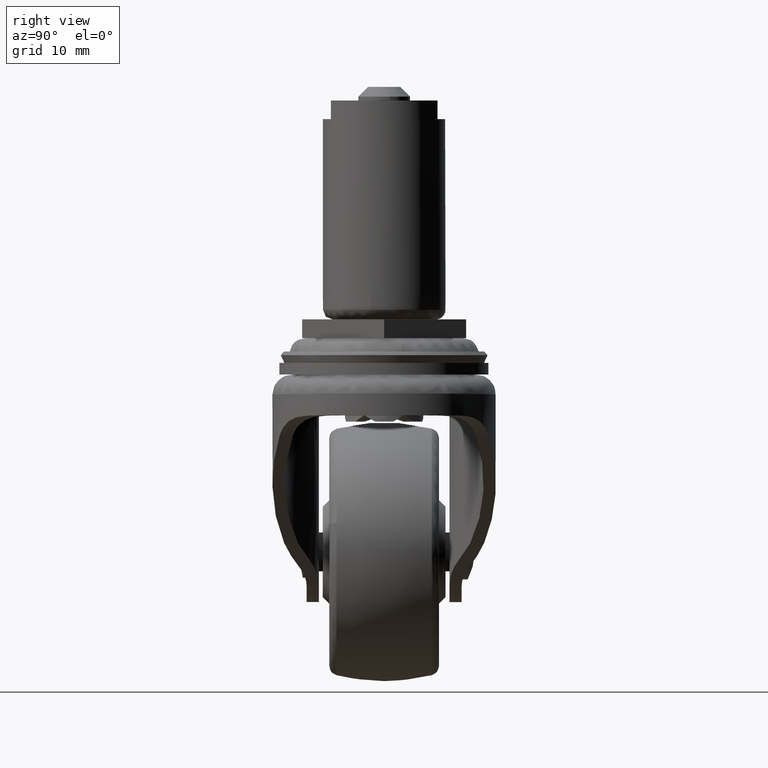
[diagram: clean part render]
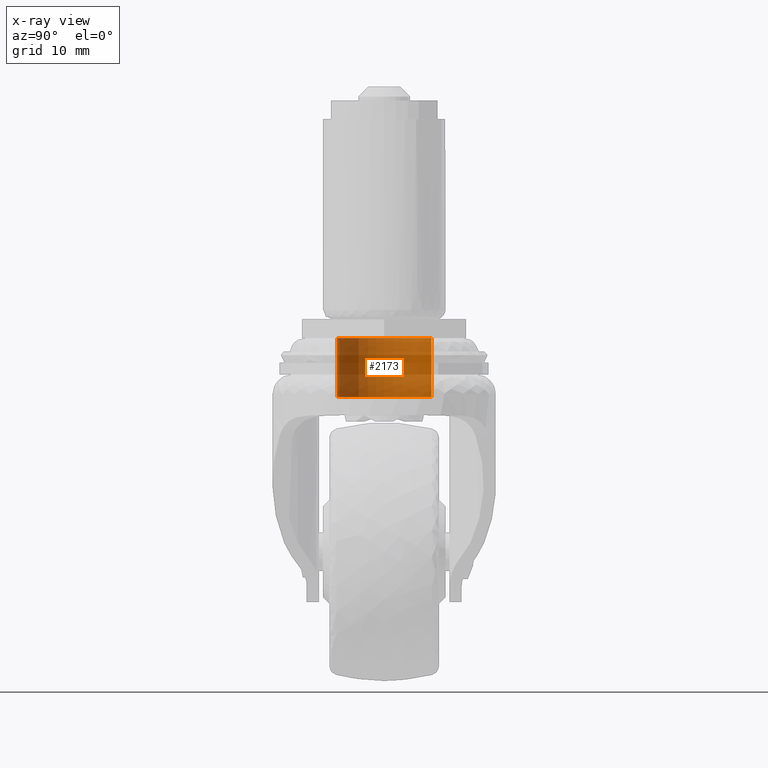
[diagram: x-ray — body ghosted, one internal face saturated and labeled with its STEP entity id]
A machine part, right view, then the same camera in x-ray: the body is ghosted and one INTERNAL B-rep face — a face not visible from any outside direction — is saturated and labeled: STEP entity #2173.
In plain terms, the highlighted face is a freeform B-spline surface patch.
Its self-contained STEP definition (entity closure, byte-faithful):
#2071=CARTESIAN_POINT('',(0.865188579349346,-7.278739968055147,-2.671990599996415));
#2072=CARTESIAN_POINT('',(0.656874168621803,-7.303501293485970,-2.671990599996416));
#2073=CARTESIAN_POINT('',(0.447484573819711,-7.316308109736315,-2.671990599996415));
#2074=CARTESIAN_POINT('',(-6.868823535916604,-7.763792683556027,-2.671990599996415));
#2075=CARTESIAN_POINT('',(-7.316308109736315,-0.447484573819711,-2.671990599996415));
#2076=CARTESIAN_POINT('',(-7.763792683556027,6.868823535916604,-2.671990599996415));
#2077=CARTESIAN_POINT('',(-0.447484573819711,7.316308109736315,-2.671990599996415));
#2078=CARTESIAN_POINT('',(0.865188579349346,-7.278739968055147,-12.253623360147035));
#2079=CARTESIAN_POINT('',(0.656874168621803,-7.303501293485970,-12.253623360147039));
#2080=CARTESIAN_POINT('',(0.447484573819711,-7.316308109736315,-12.253623360147040));
#2081=CARTESIAN_POINT('',(-6.868823535916604,-7.763792683556027,-12.253623360147035));
#2082=CARTESIAN_POINT('',(-7.316308109736315,-0.447484573819711,-12.253623360147040));
#2083=CARTESIAN_POINT('',(-7.763792683556027,6.868823535916604,-12.253623360147035));
#2084=CARTESIAN_POINT('',(-0.447484573819711,7.316308109736315,-12.253623360147040));
#2092=(BOUNDED_SURFACE()B_SPLINE_SURFACE(2,1,((#2071,#2078),(#2072,#2079),(#2073,#2080),(#2074,#2081),(#2075,#2082),(#2076,#2083),(#2077,#2084)),.UNSPECIFIED.,.F.,.F.,.U.)B_SPLINE_SURFACE_WITH_KNOTS((3,2,2,3),(2,2),(0.0,0.485788340467767,12.630496852161921,24.775205363856070),(0.0,9.581632760150622),.UNSPECIFIED.)GEOMETRIC_REPRESENTATION_ITEM()RATIONAL_B_SPLINE_SURFACE(((0.977505800795127,0.977505800795127),(0.988284271247462,0.988284271247462),(1.0,1.0),(0.707106781186548,0.707106781186548),(1.0,1.0),(0.707106781186548,0.707106781186548),(1.0,1.0)))REPRESENTATION_ITEM('')SURFACE());
#2093=CARTESIAN_POINT('',(0.865188579379371,-7.278739968051578,-12.019925000143360));
#2094=VERTEX_POINT('',#2093);
#2095=CARTESIAN_POINT('',(-7.329980000000000,0.0,-12.019925000143360));
#2096=VERTEX_POINT('',#2095);
#2097=CARTESIAN_POINT('',(0.865188579379371,-7.278739968051578,-12.019925000143360));
#2098=CARTESIAN_POINT('',(0.434111612596450,-7.329979999999999,-12.019925000143360));
#2099=CARTESIAN_POINT('',(0.0,-7.329980000000000,-12.019925000143360));
#2100=CARTESIAN_POINT('',(-7.329979999999998,-7.329979999999998,-12.019925000143362));
#2101=CARTESIAN_POINT('',(-7.329980000000000,0.0,-12.019925000143360));
#2109=(BOUNDED_CURVE()B_SPLINE_CURVE(2,(#2097,#2098,#2099,#2100,#2101),.UNSPECIFIED.,.F.,.U.)B_SPLINE_CURVE_WITH_KNOTS((3,2,3),(0.729562473514250,0.750000000000000,1.0),.UNSPECIFIED.)CURVE()GEOMETRIC_REPRESENTATION_ITEM()RATIONAL_B_SPLINE_CURVE((0.956026754185153,0.976055948332014,1.0,0.707106781186548,1.0))REPRESENTATION_ITEM(''));
#2110=EDGE_CURVE('',#2094,#2096,#2109,.T.);
#2111=ORIENTED_EDGE('',*,*,#2110,.F.);
#2112=CARTESIAN_POINT('',(0.865188579379374,-7.278739968051578,-2.899989000000001));
#2113=VERTEX_POINT('',#2112);
#2114=CARTESIAN_POINT('',(0.865188579379374,-7.278739968051578,-2.899989000000001));
#2115=CARTESIAN_POINT('',(0.865188579379371,-7.278739968051578,-12.019925000143360));
#2116=QUASI_UNIFORM_CURVE('',1,(#2114,#2115),.UNSPECIFIED.,.F.,.U.);
#2117=EDGE_CURVE('',#2113,#2094,#2116,.T.);
#2118=ORIENTED_EDGE('',*,*,#2117,.F.);
#2119=CARTESIAN_POINT('',(-7.329980000000000,0.0,-2.899989000000000));
#2120=VERTEX_POINT('',#2119);
#2121=CARTESIAN_POINT('',(0.865188579379374,-7.278739968051578,-2.899989000000001));
#2122=CARTESIAN_POINT('',(0.434111612596452,-7.329980000000000,-2.899989000000000));
#2123=CARTESIAN_POINT('',(0.0,-7.329980000000000,-2.899989000000000));
#2124=CARTESIAN_POINT('',(-7.329979999999998,-7.329979999999998,-2.899989000000000));
#2125=CARTESIAN_POINT('',(-7.329980000000000,0.0,-2.899989000000000));
#2133=(BOUNDED_CURVE()B_SPLINE_CURVE(2,(#2121,#2122,#2123,#2124,#2125),.UNSPECIFIED.,.F.,.U.)B_SPLINE_CURVE_WITH_KNOTS((3,2,3),(0.229562473514250,0.250000000000000,0.500000000000000),.UNSPECIFIED.)CURVE()GEOMETRIC_REPRESENTATION_ITEM()RATIONAL_B_SPLINE_CURVE((0.956026754185153,0.976055948332014,1.0,0.707106781186548,1.0))REPRESENTATION_ITEM(''));
#2134=EDGE_CURVE('',#2113,#2120,#2133,.T.);
#2135=ORIENTED_EDGE('',*,*,#2134,.T.);
#2136=CARTESIAN_POINT('',(-0.447484573881645,7.316308109732527,-2.899989000000000));
#2137=VERTEX_POINT('',#2136);
#2138=CARTESIAN_POINT('',(-7.329980000000000,0.0,-2.899989000000000));
#2139=CARTESIAN_POINT('',(-7.329980000000001,6.895356656180453,-2.899989000000000));
#2140=CARTESIAN_POINT('',(-0.447484573881645,7.316308109732527,-2.899989000000000));
#2148=(BOUNDED_CURVE()B_SPLINE_CURVE(2,(#2138,#2139,#2140),.UNSPECIFIED.,.F.,.U.)B_SPLINE_CURVE_WITH_KNOTS((3,3),(0.500000000000000,0.739332962239047),.UNSPECIFIED.)CURVE()GEOMETRIC_REPRESENTATION_ITEM()RATIONAL_B_SPLINE_CURVE((1.0,0.719603993286588,0.976072041666941))REPRESENTATION_ITEM(''));
#2149=EDGE_CURVE('',#2120,#2137,#2148,.T.);
#2150=ORIENTED_EDGE('',*,*,#2149,.T.);
#2151=CARTESIAN_POINT('',(-0.447484573881647,7.316308109732527,-12.019925000143360));
#2152=VERTEX_POINT('',#2151);
#2153=CARTESIAN_POINT('',(-0.447484573881645,7.316308109732527,-2.899989000000000));
#2154=CARTESIAN_POINT('',(-0.447484573881647,7.316308109732527,-12.019925000143360));
#2155=QUASI_UNIFORM_CURVE('',1,(#2153,#2154),.UNSPECIFIED.,.F.,.U.);
#2156=EDGE_CURVE('',#2137,#2152,#2155,.T.);
#2157=ORIENTED_EDGE('',*,*,#2156,.T.);
#2158=CARTESIAN_POINT('',(-7.329980000000000,0.0,-12.019925000143360));
#2159=CARTESIAN_POINT('',(-7.329979999999998,6.895356656180446,-12.019925000143362));
#2160=CARTESIAN_POINT('',(-0.447484573881647,7.316308109732527,-12.019925000143356));
#2168=(BOUNDED_CURVE()B_SPLINE_CURVE(2,(#2158,#2159,#2160),.UNSPECIFIED.,.F.,.U.)B_SPLINE_CURVE_WITH_KNOTS((3,3),(0.0,0.239332962239047),.UNSPECIFIED.)CURVE()GEOMETRIC_REPRESENTATION_ITEM()RATIONAL_B_SPLINE_CURVE((1.0,0.719603993286588,0.976072041666941))REPRESENTATION_ITEM(''));
#2169=EDGE_CURVE('',#2096,#2152,#2168,.T.);
#2170=ORIENTED_EDGE('',*,*,#2169,.F.);
#2171=EDGE_LOOP('',(#2111,#2118,#2135,#2150,#2157,#2170));
#2172=FACE_OUTER_BOUND('',#2171,.T.);
#2173=ADVANCED_FACE('',(#2172),#2092,.T.);